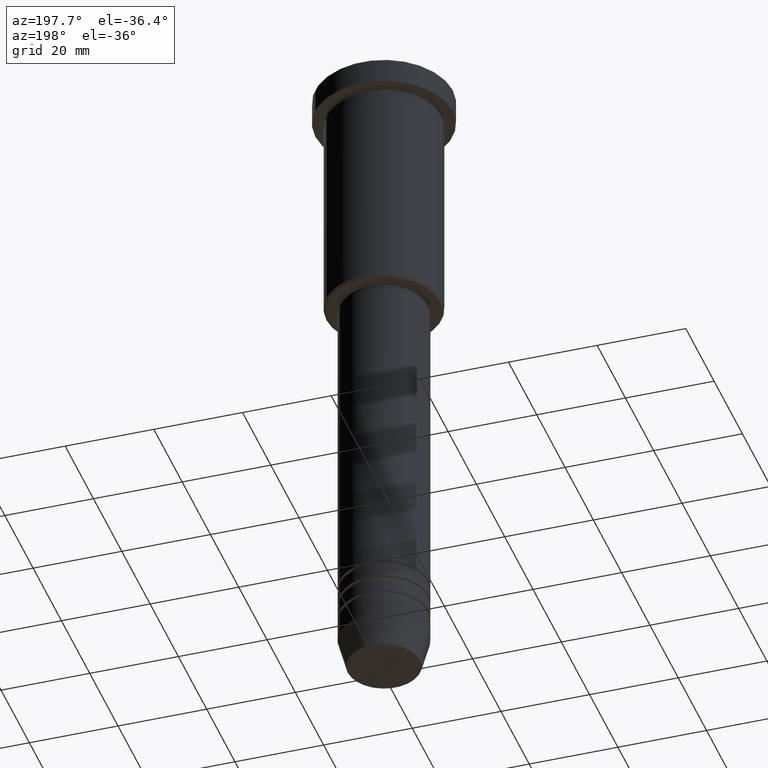
[diagram: clean part render]
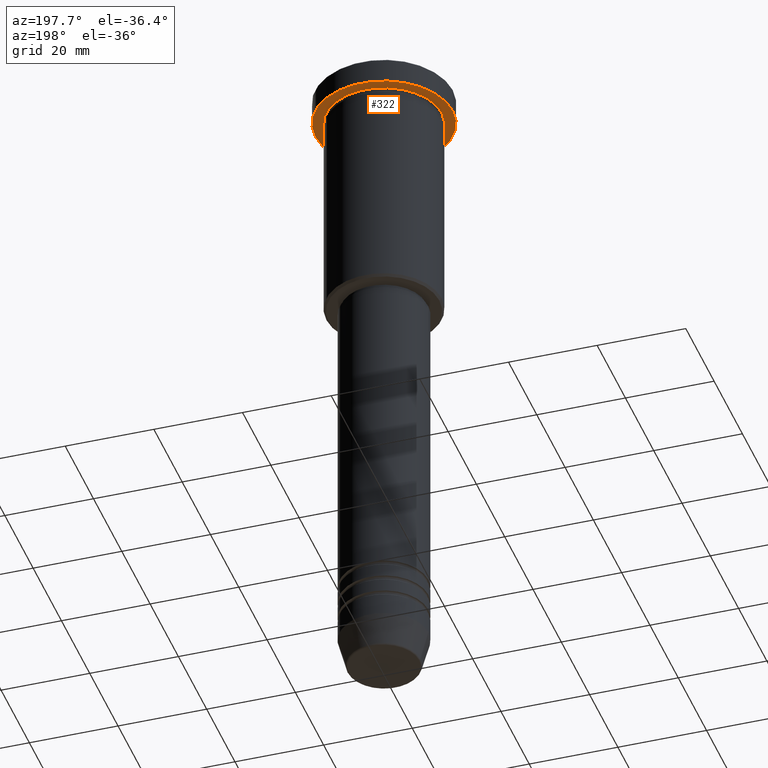
[diagram: same view with one face highlighted and labeled with its STEP entity id]
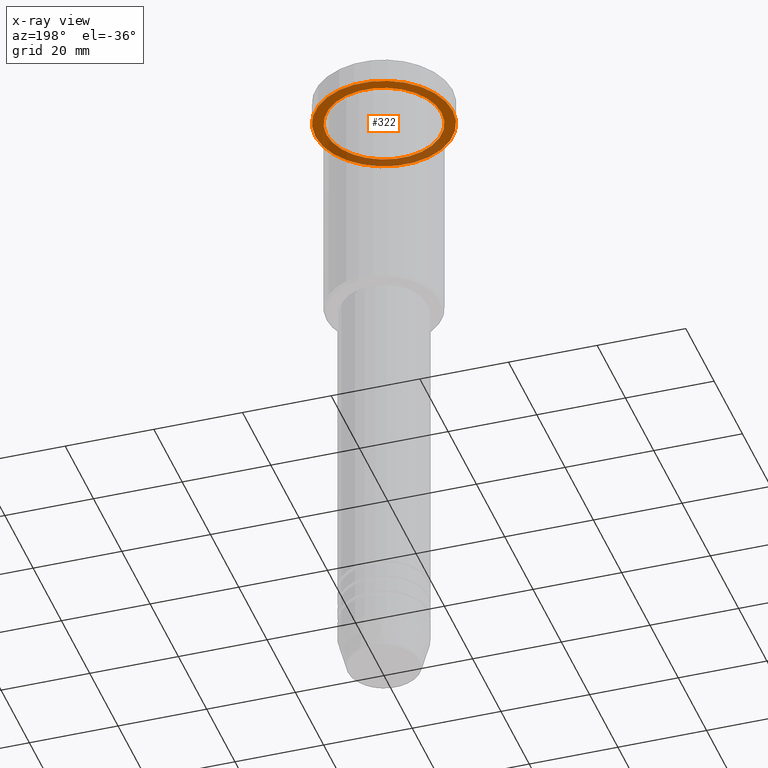
[diagram: x-ray of the same camera — body ghosted, the highlighted face saturated]
A machine part, auxiliary view. The second image highlights one B-rep face of the part: STEP entity #322.
The next image is the same camera in x-ray: the body ghosted, the highlighted face saturated — about 32% of this face is hidden behind the body in this view.
In plain terms, the highlighted planar face has unit normal (0, 0, -1).
Its self-contained STEP definition (entity closure, byte-faithful):
#7 = DIRECTION ( 'NONE',  ( 0.000000000000000000, 0.000000000000000000, -1.000000000000000000 ) ) ;
#46 = DIRECTION ( 'NONE',  ( -1.000000000000000000, 0.000000000000000000, 0.000000000000000000 ) ) ;
#60 = ORIENTED_EDGE ( 'NONE', *, *, #588, .F. ) ;
#65 = EDGE_LOOP ( 'NONE', ( #60, #1087 ) ) ;
#81 = DIRECTION ( 'NONE',  ( -1.000000000000000000, 0.000000000000000000, 0.000000000000000000 ) ) ;
#92 = CIRCLE ( 'NONE', #760, 15.50000000000000000 ) ;
#125 = EDGE_CURVE ( 'NONE', #936, #303, #222, .T. ) ;
#160 = DIRECTION ( 'NONE',  ( 1.000000000000000000, 0.000000000000000000, 0.000000000000000000 ) ) ;
#197 = CARTESIAN_POINT ( 'NONE',  ( 0.000000000000000000, 0.000000000000000000, -5.999999999999995559 ) ) ;
#211 = DIRECTION ( 'NONE',  ( -1.000000000000000000, 0.000000000000000000, -0.000000000000000000 ) ) ;
#214 = DIRECTION ( 'NONE',  ( 1.000000000000000000, 0.000000000000000000, 0.000000000000000000 ) ) ;
#222 = CIRCLE ( 'NONE', #666, 13.00000000000000000 ) ;
#228 = CARTESIAN_POINT ( 'NONE',  ( 13.00000000000000000, 1.592040838891559095E-15, -5.999999999999994671 ) ) ;
#303 = VERTEX_POINT ( 'NONE', #1106 ) ;
#320 = AXIS2_PLACEMENT_3D ( 'NONE', #1133, #414, #46 ) ;
#322 = ADVANCED_FACE ( 'NONE', ( #658, #576 ), #556, .T. ) ;
#414 = DIRECTION ( 'NONE',  ( -0.000000000000000000, -0.000000000000000000, 1.000000000000000000 ) ) ;
#428 = DIRECTION ( 'NONE',  ( -0.000000000000000000, -0.000000000000000000, 1.000000000000000000 ) ) ;
#503 = DIRECTION ( 'NONE',  ( -0.000000000000000000, -0.000000000000000000, 1.000000000000000000 ) ) ;
#556 = PLANE ( 'NONE',  #777 ) ;
#571 = CARTESIAN_POINT ( 'NONE',  ( 15.50000000000000000, 0.000000000000000000, -5.999999999999995559 ) ) ;
#576 = FACE_OUTER_BOUND ( 'NONE', #65, .T. ) ;
#588 = EDGE_CURVE ( 'NONE', #1162, #1180, #1064, .T. ) ;
#619 = DIRECTION ( 'NONE',  ( -0.000000000000000000, -0.000000000000000000, 1.000000000000000000 ) ) ;
#658 = FACE_BOUND ( 'NONE', #1118, .T. ) ;
#659 = CARTESIAN_POINT ( 'NONE',  ( -15.50000000000000000, 1.898202538678397557E-15, -5.999999999999995559 ) ) ;
#666 = AXIS2_PLACEMENT_3D ( 'NONE', #1072, #619, #81 ) ;
#760 = AXIS2_PLACEMENT_3D ( 'NONE', #795, #428, #160 ) ;
#777 = AXIS2_PLACEMENT_3D ( 'NONE', #1028, #7, #211 ) ;
#795 = CARTESIAN_POINT ( 'NONE',  ( 0.000000000000000000, 0.000000000000000000, -5.999999999999995559 ) ) ;
#891 = ORIENTED_EDGE ( 'NONE', *, *, #125, .T. ) ;
#936 = VERTEX_POINT ( 'NONE', #228 ) ;
#954 = EDGE_CURVE ( 'NONE', #303, #936, #1016, .T. ) ;
#1016 = CIRCLE ( 'NONE', #320, 13.00000000000000000 ) ;
#1028 = CARTESIAN_POINT ( 'NONE',  ( 0.000000000000000000, 15.50000000000000000, -5.999999999999995559 ) ) ;
#1046 = ORIENTED_EDGE ( 'NONE', *, *, #954, .T. ) ;
#1064 = CIRCLE ( 'NONE', #1142, 15.50000000000000000 ) ;
#1072 = CARTESIAN_POINT ( 'NONE',  ( 0.000000000000000000, 0.000000000000000000, -5.999999999999995559 ) ) ;
#1081 = EDGE_CURVE ( 'NONE', #1180, #1162, #92, .T. ) ;
#1087 = ORIENTED_EDGE ( 'NONE', *, *, #1081, .F. ) ;
#1106 = CARTESIAN_POINT ( 'NONE',  ( -13.00000000000000000, 0.000000000000000000, -5.999999999999994671 ) ) ;
#1118 = EDGE_LOOP ( 'NONE', ( #1046, #891 ) ) ;
#1133 = CARTESIAN_POINT ( 'NONE',  ( 0.000000000000000000, 0.000000000000000000, -5.999999999999995559 ) ) ;
#1142 = AXIS2_PLACEMENT_3D ( 'NONE', #197, #503, #214 ) ;
#1162 = VERTEX_POINT ( 'NONE', #571 ) ;
#1180 = VERTEX_POINT ( 'NONE', #659 ) ;